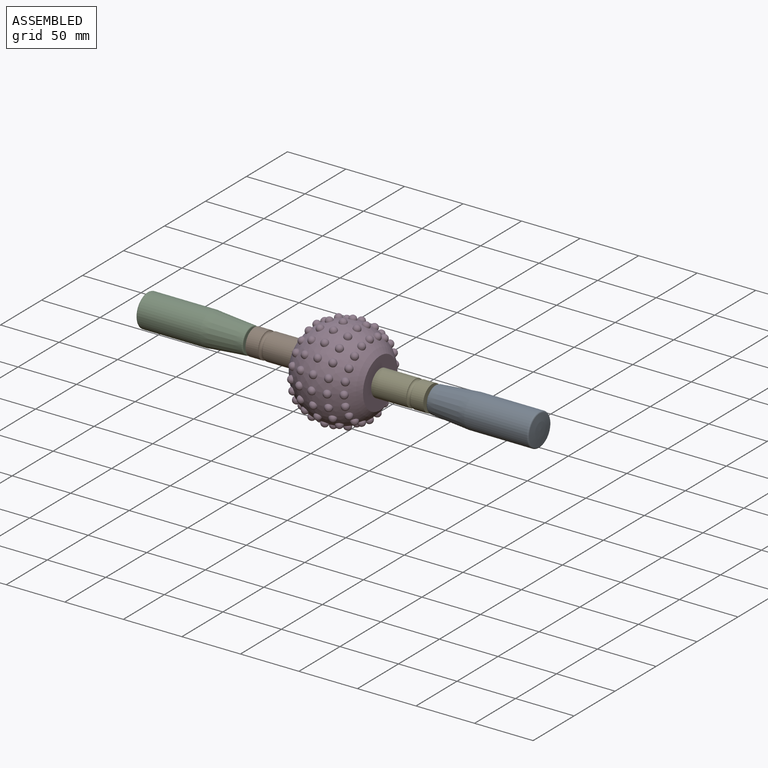
[diagram: assembled view]
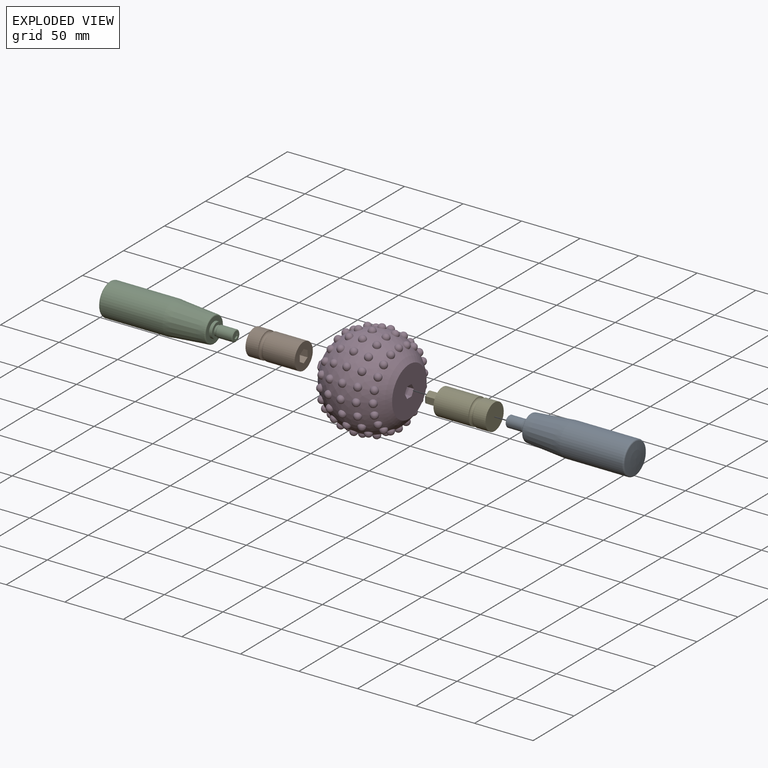
[diagram: exploded view]
GUIDED TOUR — MATED ASSEMBLY (Onshape document 25d12aa0dbe9cc3b2624c550, AutoMate assembly 25d12aa0dbe9cc3b2624c550_762bee8474b83015962dd6f4_c3f273e7779400f6ba3a4908_default)

This assembly has 5 components, labeled P0..P4 below (a component is one placed occurrence of a part; the same part can appear more than once), held together by 4 mates. A mate is a constraint between two components; its type names the relative motion it leaves free:
  FASTENED — locks the two components together rigidly (no relative motion),
  REVOLUTE — leaves rotation about the listed axis free (a hinge).
Axis/direction vectors are unit vectors and 'through' points are millimeter coordinates, both in the assembly's world frame.

MATES
  1. REVOLUTE "Revolute 2": P2 <-> P1, axis (1.000, 0.000, 0.000) through (-125.36, -10.83, 31.58) mm
  2. FASTENED "Fastened 2": P4 <-> P0, direction (1.000, 0.000, 0.000) through (24.54, -8.08, 26.82) mm
  3. FASTENED "Fastened 1": P4 <-> P3, direction (-1.000, 0.000, 0.000) through (-19.91, -8.08, 26.82) mm
  4. FASTENED "Fastened 3": P3 <-> P1, direction (1.000, 0.000, 0.000) through (-83.41, -10.83, 31.58) mm

ASSEMBLY ORDER
  1. P1 — the base component [order heuristic]
  2. P2 [order heuristic]
  3. P3 [order heuristic]
  4. P4 [order heuristic]
  5. P0 [order heuristic]
Order-tag legend:
  [order heuristic] — this assembly is geometrically interlocked (no collision-free removal order exists), so components are listed in mate-graph order; insertion feasibility is not verified.

Of the 5 components, 2 carry the full construction recipe — the FeatureScript program that regenerates the part's solid from scratch; the rest are supplied as boundary geometry only.
Each toured component is shown spotlighted twice — in the assembled view, then in the exploded view, where a leader line traces a displaced component back to its assembled socket (saturated green if recipe-attached, orange if geometry-only; every other component desaturated gray) — followed by its recipe or geometry summary and the mates that hold it.
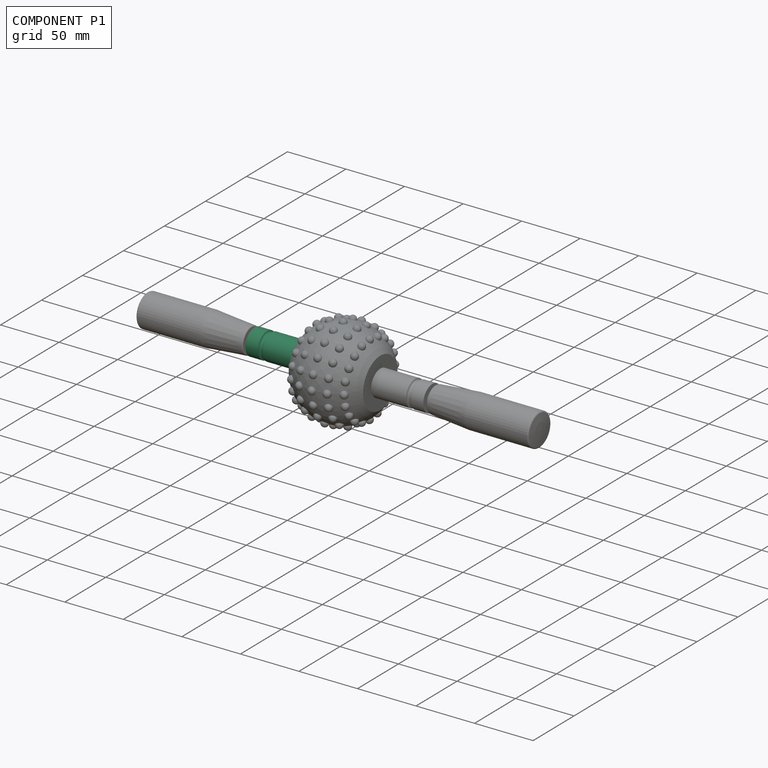
[diagram: component P1 — assembled]
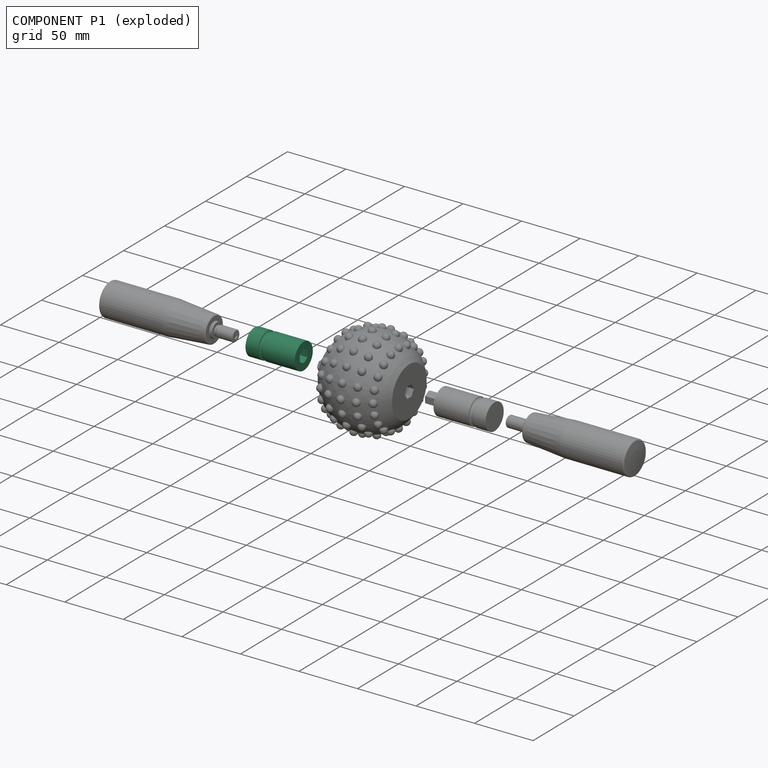
[diagram: component P1 — exploded]
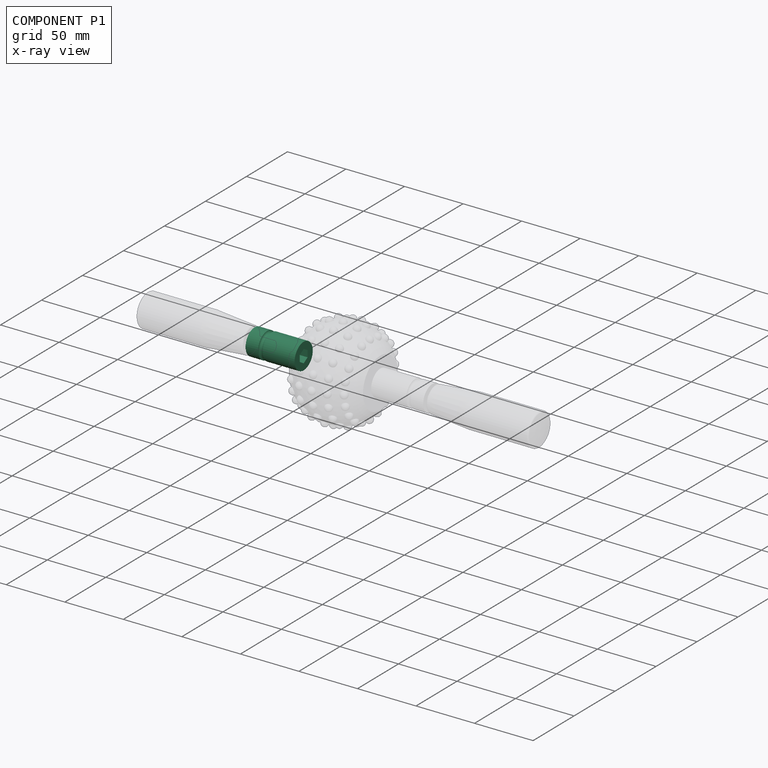
[diagram: component P1 — x-ray view]
COMPONENT P1 — recipe-attached (CADFS 00455741, mesh-verified: the recipe's output STEP matches this component's geometry to below the mesh-comparison resolution (tessellation chordal tolerance ~0.0786 mm)).
Held by: REVOLUTE mate "Revolute 2" to P2; FASTENED mate "Fastened 3" to P3.
Construction recipe (FeatureScript — the CAD program that rebuilds this solid; sketch coordinates are in the units given by the * unit suffixes, e.g. mm):

FeatureScript 1511;
import(path : "onshape/std/geometry.fs", version : "1511.0");
import(path : "onshape/std/common.fs", version : "1511.0");
const mm = millimeter;
const VERTEX = EntityType.VERTEX;
const EDGE = EntityType.EDGE;
const FACE = EntityType.FACE;
const BODY = EntityType.BODY;
function v(x, y){return vector(x, y);}
function OD(order){return orderDisambiguation(order);}
function OSD(set){return originalSetDisambiguation(set);}
function TD(topology){return topologyDisambiguation(topology);}
function TDD(query){return trueDependencyDisambiguation(query);}
function sQuery(a, b, c) {return sketchEntityQuery(a, b, c);}

annotation { "Feature Type Name" : "Feature", "Feature Type Description" : "" }
export const myFeature = defineFeature(function(context is Context, id is Id, definition is map)
    precondition{}
    {
        {
            var Q0;
            Q0=qCreatedBy(makeId("Right.planeOp"),FACE);
            var sketch = newSketch(context, id + "F0", { "sketchPlane" : qUnion([Q0])});
            skCircle(sketch, "E0", {"center": v(0, 0) * mm, "radius": 11.11 * mm});
            skPoint(sketch, "E1.0.midPoint", {"position": v(4.79, 0) * mm});
            skSolve(sketch);
        }
        {
            var Q0;
            Q0 = qSketchRegion(id + "F0", true);
            extrude(context, id + "F1", {"entities" : qUnion([Q0]), "oppositeDirection" : true, "depth" : 41.95 * mm});
        }
        {
            var Q0;
            Q0=qCreatedBy(makeId("Right.planeOp"),FACE);
            var sketch = newSketch(context, id + "F2", { "sketchPlane" : qUnion([Q0])});
            skCircle(sketch, "E2.cCircle", {"center": v(0, 0) * mm, "radius": 4.79 * mm, "construction": true});
            skLineSegment(sketch, "E2.0", {"start": v(4.79, 2.76) * mm, "end": v(4.79, -2.76) * mm});
            skLineSegment(sketch, "E2.1", {"start": v(4.79, -2.76) * mm, "end": v(0, -5.53) * mm});
            skLineSegment(sketch, "E2.2", {"start": v(0, -5.53) * mm, "end": v(-4.79, -2.76) * mm});
            skLineSegment(sketch, "E2.3", {"start": v(-4.79, -2.76) * mm, "end": v(-4.79, 2.76) * mm});
            skLineSegment(sketch, "E2.4", {"start": v(-4.79, 2.76) * mm, "end": v(0, 5.53) * mm});
            skLineSegment(sketch, "E2.5", {"start": v(0, 5.53) * mm, "end": v(4.79, 2.76) * mm});
            skPoint(sketch, "E2.0.midPoint", {"position": v(4.79, 0) * mm});
            skSolve(sketch);
        }
        {
            var Q0;
            Q0 = qSketchRegion(id + "F2", true);
            extrude(context, id + "F3", {"entities" : qUnion([Q0]), "operationType" : NewBodyOperationType.REMOVE, "oppositeDirection" : true, "depth" : 9.52 * mm});
        }
        {
            var Q0;
            Q0=makeQuery(id+"F1.opExtrude","CAP_FACE",FACE,{"disambiguationData":[OSD([sQuery(id+"F0.wireOp",EDGE,"E0")])],"isStart":false});
            var sketch = newSketch(context, id + "F4", { "sketchPlane" : qUnion([Q0])});
            skPoint(sketch, "E3", {"position": v(0, 0) * mm});
            skSolve(sketch);
        }
        {
            var Q0;
            Q0=sQuery(id+"F4.wireOp",VERTEX,"E3");
            var Q1;
            Q1=makeQuery(id+"F1.opExtrude","SWEPT_BODY",BODY,{"disambiguationData":[OSD([sQuery(id+"F0.wireOp",EDGE,"E0")])]});
            hole(context, id + "F5", {"style" : HoleStyle.SIMPLE, "endStyle" : HoleEndStyle.BLIND, "standardTappedOrClearance" : lookupTablePath({ "standard" : "ANSI", "engagement" : "75%", "pitch" : "16 tpi", "size" : "3/8", "type" : "Tapped" }), "standardBlindInLast" : lookupTablePath({ "standard" : "ANSI", "engagement" : "75%", "pitch" : "16 tpi", "size" : "3/8", "type" : "Tapped" }), "holeDiameter" : 7.94 * mm, "showTappedDepth" : true, "holeDepth" : 34.75 * mm, "isTappedThrough" : true, "tappedDepth" : 29.98 * mm, "tapClearance" : 3, "locations" : qUnion([Q0]), "scope" : qUnion([Q1]), "majorDiameter" : 9.53 * mm});
        }
        {
            var Q0;
            Q0=qCreatedBy(makeId("Front.planeOp"),FACE);
            var sketch = newSketch(context, id + "F6", { "sketchPlane" : qUnion([Q0])});
            skCircle(sketch, "E4", {"center": v(-29.25, 11.11) * mm, "radius": 1.9 * mm});
            skLineSegment(sketch, "E5", {"start": v(0, 0) * mm, "end": v(-64.29, 0) * mm, "construction": true});
            skSolve(sketch);
        }
        {
            var Q0;
            Q0=makeQuery(id+"F6.imprint","IMPRINT",FACE,{"disambiguationData":[TD([[makeQuery(id+"F6.imprint","IMPRINT",EDGE,{"derivedFrom":sQuery(id+"F6.wireOp",EDGE,"E4")}),1.0]])]});
            var Q1;
            Q1=sQuery(id+"F6.wireOp",EDGE,"E5");
            var Q2;
            Q2=sQuery(id+"F6.wireOp",EDGE,"E5");
            revolve(context, id + "F7", {"operationType" : NewBodyOperationType.REMOVE, "entities" : qUnion([Q0]), "surfaceEntities" : qUnion([Q1]), "axis" : qUnion([Q2]), "revolveType" : RevolveType.FULL, "oppositeDirection" : true});
        }
    });
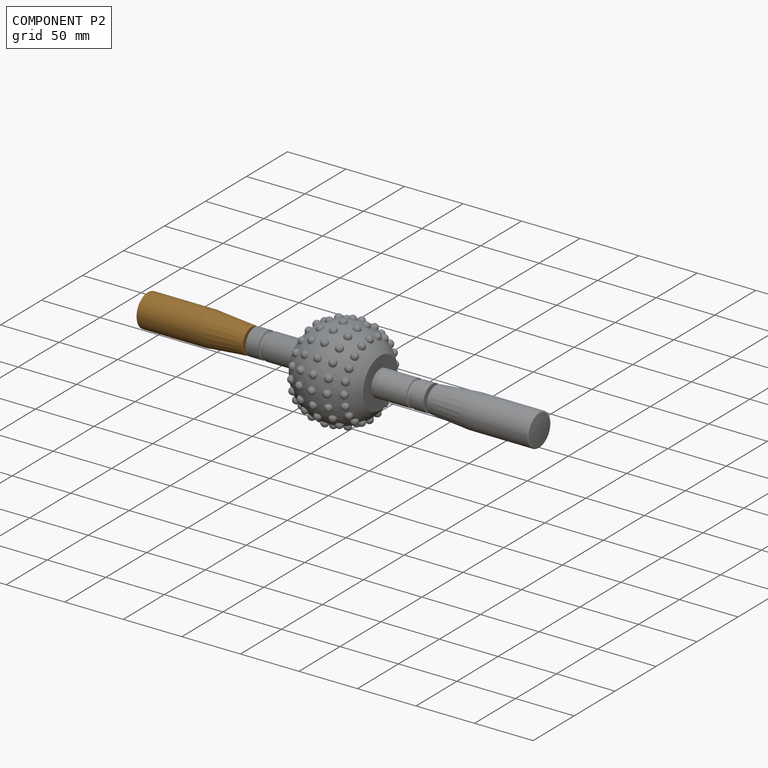
[diagram: component P2 — assembled]
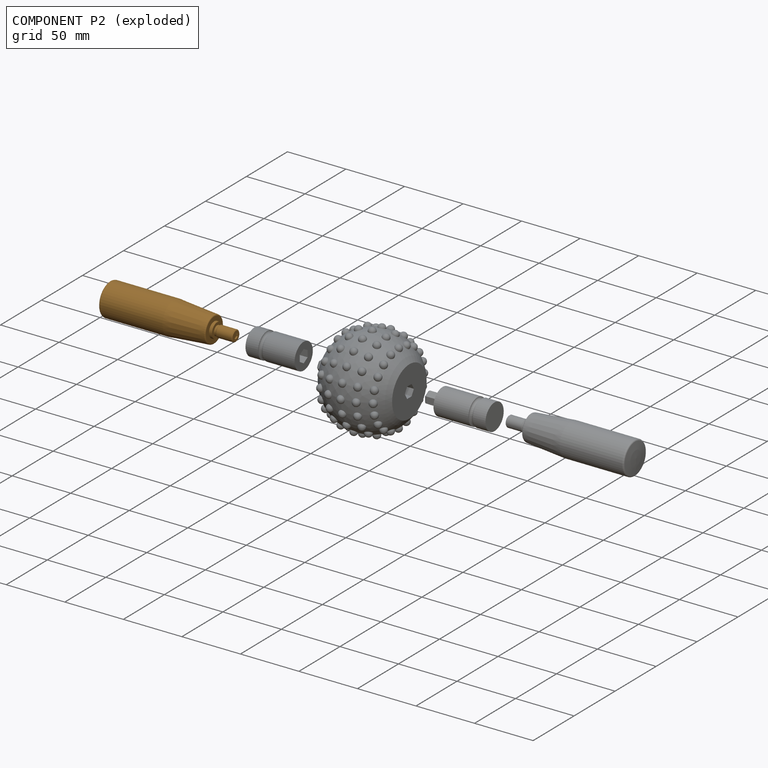
[diagram: component P2 — exploded]
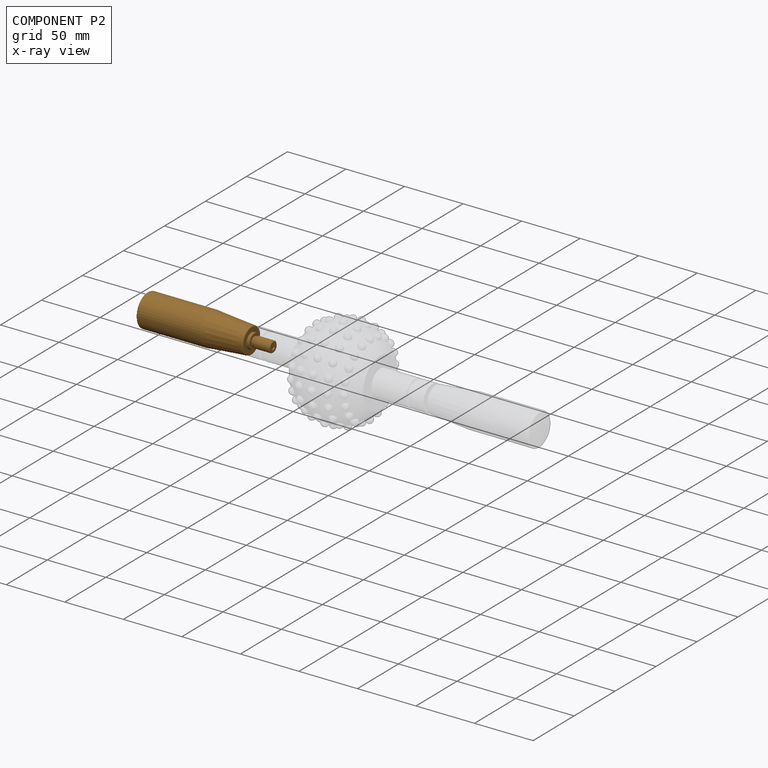
[diagram: component P2 — x-ray view]
COMPONENT P2 — geometry summary (no construction recipe available for this part):
  bounding box: 108.5 x 30.2 x 30.2 mm
  B-rep topology: 1 solid, 20 faces, 87 edges
  volume: 52107 mm^3 (53% of its bounding box)
  symmetry: revolution-symmetric about the z axis through its bounding-box center; mirror-symmetric across its x mid-plane, y mid-plane
Held by: REVOLUTE mate "Revolute 2" to P1.
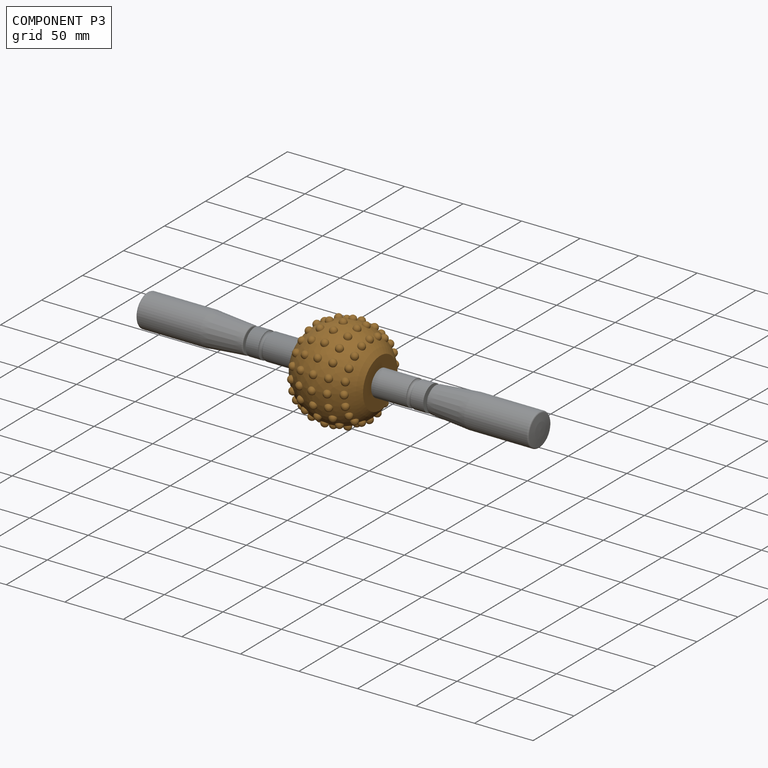
[diagram: component P3 — assembled]
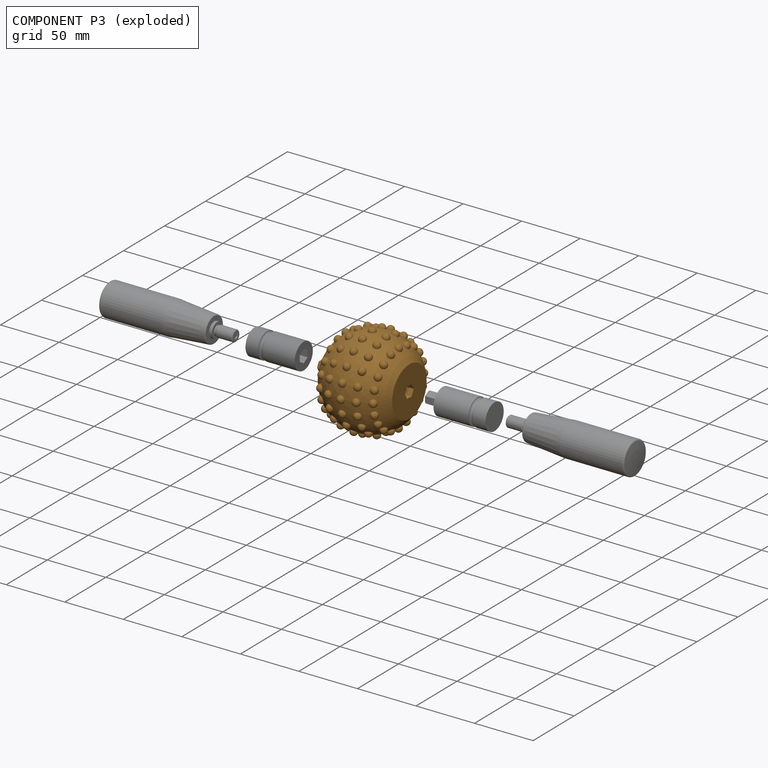
[diagram: component P3 — exploded]
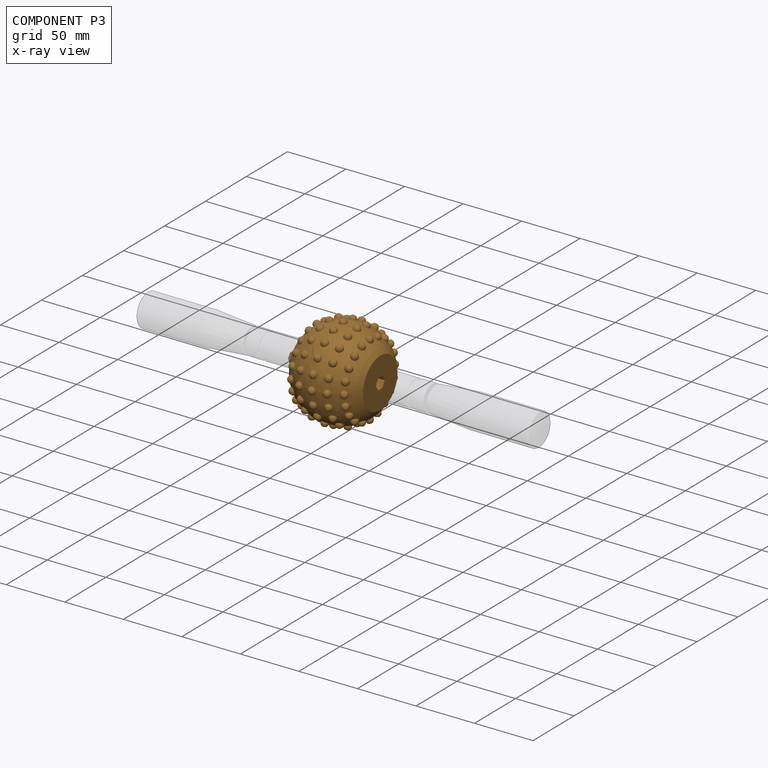
[diagram: component P3 — x-ray view]
COMPONENT P3 — geometry summary (no construction recipe available for this part):
  bounding box: 82.6 x 82.6 x 76.2 mm
  B-rep topology: 1 solid, 123 faces, 606 edges
  volume: 229427 mm^3 (44% of its bounding box)
  symmetry: 4-fold rotationally symmetric about the x axis; mirror-symmetric across its y mid-plane, z mid-plane
Held by: FASTENED mate "Fastened 1" to P4; FASTENED mate "Fastened 3" to P1.
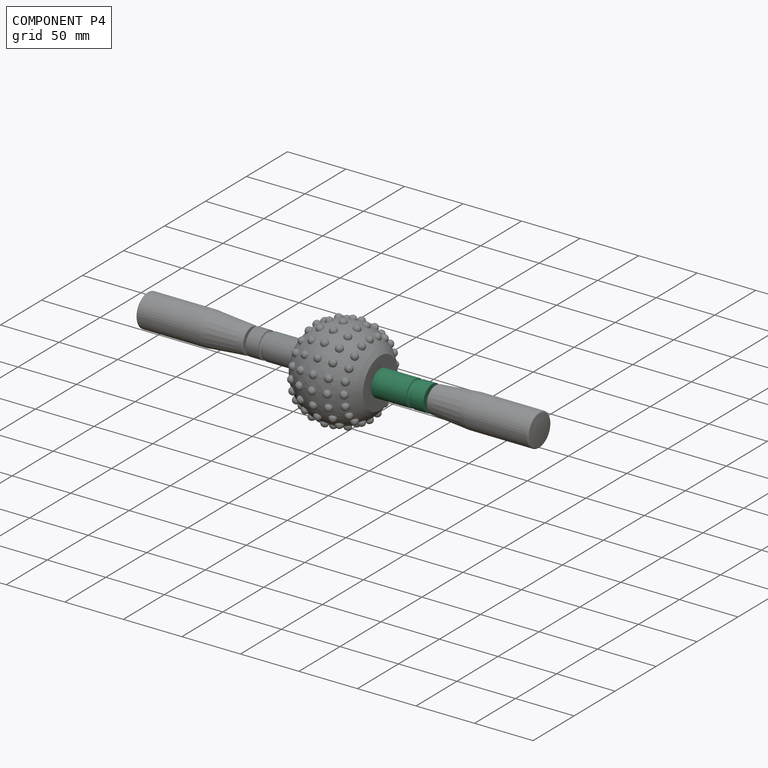
[diagram: component P4 — assembled]
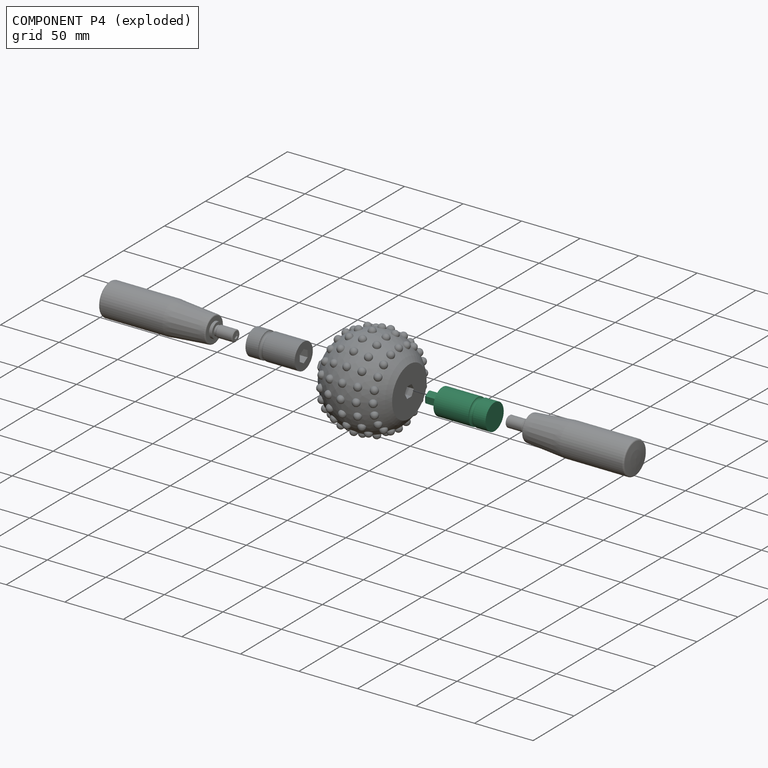
[diagram: component P4 — exploded]
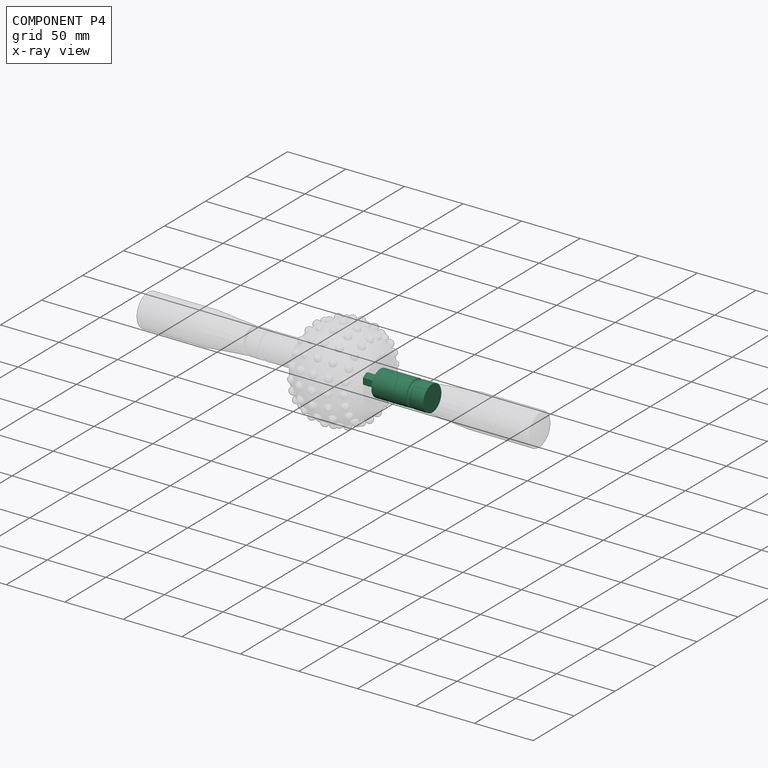
[diagram: component P4 — x-ray view]
COMPONENT P4 — recipe-attached (CADFS 00455743, mesh-verified: the recipe's output STEP matches this component's geometry to below the mesh-comparison resolution (tessellation chordal tolerance ~0.0978 mm)).
Held by: FASTENED mate "Fastened 2" to P0; FASTENED mate "Fastened 1" to P3.
Construction recipe (FeatureScript — the CAD program that rebuilds this solid; sketch coordinates are in the units given by the * unit suffixes, e.g. mm):

FeatureScript 1511;
import(path : "onshape/std/geometry.fs", version : "1511.0");
import(path : "onshape/std/common.fs", version : "1511.0");
const mm = millimeter;
const VERTEX = EntityType.VERTEX;
const EDGE = EntityType.EDGE;
const FACE = EntityType.FACE;
const BODY = EntityType.BODY;
function v(x, y){return vector(x, y);}
function OD(order){return orderDisambiguation(order);}
function OSD(set){return originalSetDisambiguation(set);}
function TD(topology){return topologyDisambiguation(topology);}
function TDD(query){return trueDependencyDisambiguation(query);}
function sQuery(a, b, c) {return sketchEntityQuery(a, b, c);}

annotation { "Feature Type Name" : "Feature", "Feature Type Description" : "" }
export const myFeature = defineFeature(function(context is Context, id is Id, definition is map)
    precondition{}
    {
        {
            var Q0;
            Q0=qCreatedBy(makeId("Right.planeOp"),FACE);
            var sketch = newSketch(context, id + "F0", { "sketchPlane" : qUnion([Q0])});
            skCircle(sketch, "E0", {"center": v(0, 0) * mm, "radius": 11.11 * mm});
            skSolve(sketch);
        }
        {
            var Q0;
            Q0 = qSketchRegion(id + "F0", true);
            extrude(context, id + "F1", {"entities" : qUnion([Q0]), "depth" : 44.45 * mm});
        }
        {
            var Q0;
            Q0=qCreatedBy(makeId("Right.planeOp"),FACE);
            var sketch = newSketch(context, id + "F2", { "sketchPlane" : qUnion([Q0])});
            skCircle(sketch, "E1.cCircle", {"center": v(0, 0) * mm, "radius": 4.76 * mm, "construction": true});
            skLineSegment(sketch, "E1.0", {"start": v(-4.76, -2.75) * mm, "end": v(-4.76, 2.75) * mm});
            skLineSegment(sketch, "E1.1", {"start": v(-4.76, 2.75) * mm, "end": v(0, 5.5) * mm});
            skLineSegment(sketch, "E1.2", {"start": v(0, 5.5) * mm, "end": v(4.76, 2.75) * mm});
            skLineSegment(sketch, "E1.3", {"start": v(4.76, 2.75) * mm, "end": v(4.76, -2.75) * mm});
            skLineSegment(sketch, "E1.4", {"start": v(4.76, -2.75) * mm, "end": v(0, -5.5) * mm});
            skLineSegment(sketch, "E1.5", {"start": v(0, -5.5) * mm, "end": v(-4.76, -2.75) * mm});
            skPoint(sketch, "E1.0.midPoint", {"position": v(-4.76, 0) * mm});
            skSolve(sketch);
        }
        {
            var Q0;
            Q0 = qSketchRegion(id + "F2", true);
            extrude(context, id + "F3", {"entities" : qUnion([Q0]), "operationType" : NewBodyOperationType.ADD, "oppositeDirection" : true, "depth" : 12.7 * mm, "offsetDistance" : 25.4 * mm});
        }
        {
            var Q0;
            Q0=makeQuery(id+"F3.opExtrude","CAP_EDGE",EDGE,{"disambiguationData":[OSD([sQuery(id+"F2.wireOp",EDGE,"E1.1")])],"isStart":false});
            var Q1;
            Q1=makeQuery(id+"F3.opExtrude","CAP_EDGE",EDGE,{"disambiguationData":[OSD([sQuery(id+"F2.wireOp",EDGE,"E1.2")])],"isStart":false});
            var Q2;
            Q2=makeQuery(id+"F3.opExtrude","CAP_EDGE",EDGE,{"disambiguationData":[OSD([sQuery(id+"F2.wireOp",EDGE,"E1.3")])],"isStart":false});
            var Q3;
            Q3=makeQuery(id+"F3.opExtrude","CAP_EDGE",EDGE,{"disambiguationData":[OSD([sQuery(id+"F2.wireOp",EDGE,"E1.4")])],"isStart":false});
            var Q4;
            Q4=makeQuery(id+"F3.opExtrude","CAP_EDGE",EDGE,{"disambiguationData":[OSD([sQuery(id+"F2.wireOp",EDGE,"E1.5")])],"isStart":false});
            var Q5;
            Q5=makeQuery(id+"F3.opExtrude","CAP_EDGE",EDGE,{"disambiguationData":[OSD([sQuery(id+"F2.wireOp",EDGE,"E1.0")])],"isStart":false});
            fillet(context, id + "F4", {"entities" : qUnion([Q0, Q1, Q2, Q3, Q4, Q5]), "radius" : 2.38 * mm, "tangentPropagation" : true, "allowEdgeOverflow" : false});
        }
        {
            var Q0;
            Q0=makeQuery(id+"F1.opExtrude","CAP_FACE",FACE,{"disambiguationData":[OSD([sQuery(id+"F0.wireOp",EDGE,"E0")])],"isStart":false});
            var sketch = newSketch(context, id + "F5", { "sketchPlane" : qUnion([Q0])});
            skPoint(sketch, "E2", {"position": v(0, 0) * mm});
            skSolve(sketch);
        }
        {
            var Q0;
            Q0=qCreatedBy(makeId("Front.planeOp"),FACE);
            var sketch = newSketch(context, id + "F6", { "sketchPlane" : qUnion([Q0])});
            skCircle(sketch, "E3", {"center": v(31.75, 11.11) * mm, "radius": 1.9 * mm});
            skLineSegment(sketch, "E4", {"start": v(0, 0) * mm, "end": v(79.53, 0) * mm, "construction": true});
            skSolve(sketch);
        }
        {
            var Q0;
            Q0=makeQuery(id+"F6.imprint","IMPRINT",FACE,{"disambiguationData":[TD([[makeQuery(id+"F6.imprint","IMPRINT",EDGE,{"derivedFrom":sQuery(id+"F6.wireOp",EDGE,"E3")}),1.0]])]});
            var Q1;
            Q1=sQuery(id+"F6.wireOp",EDGE,"E3");
            var Q2;
            Q2=sQuery(id+"F6.wireOp",EDGE,"E4");
            revolve(context, id + "F7", {"operationType" : NewBodyOperationType.REMOVE, "entities" : qUnion([Q0]), "surfaceEntities" : qUnion([Q1]), "axis" : qUnion([Q2]), "revolveType" : RevolveType.FULL, "oppositeDirection" : true});
        }
    });
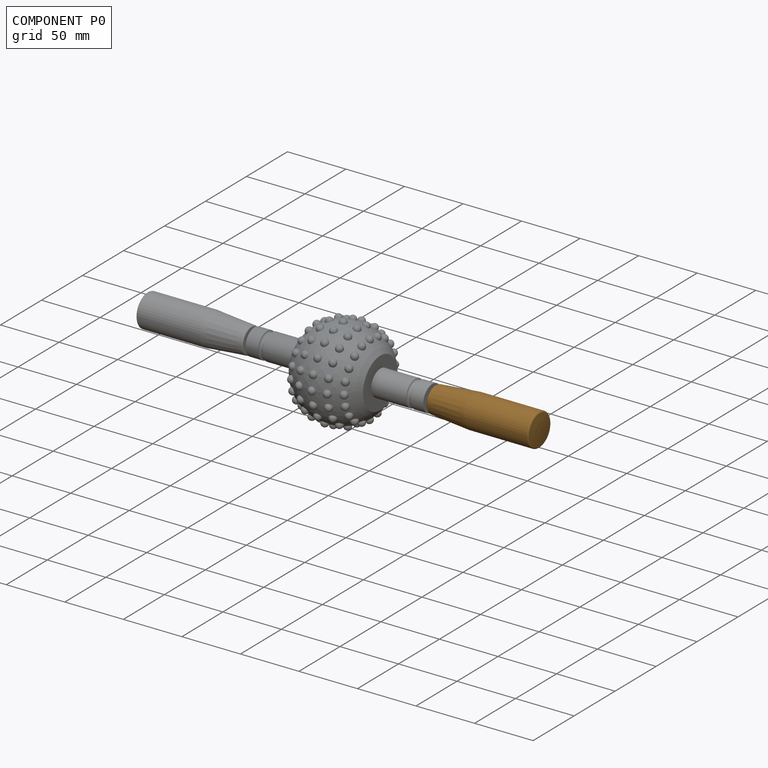
[diagram: component P0 — assembled]
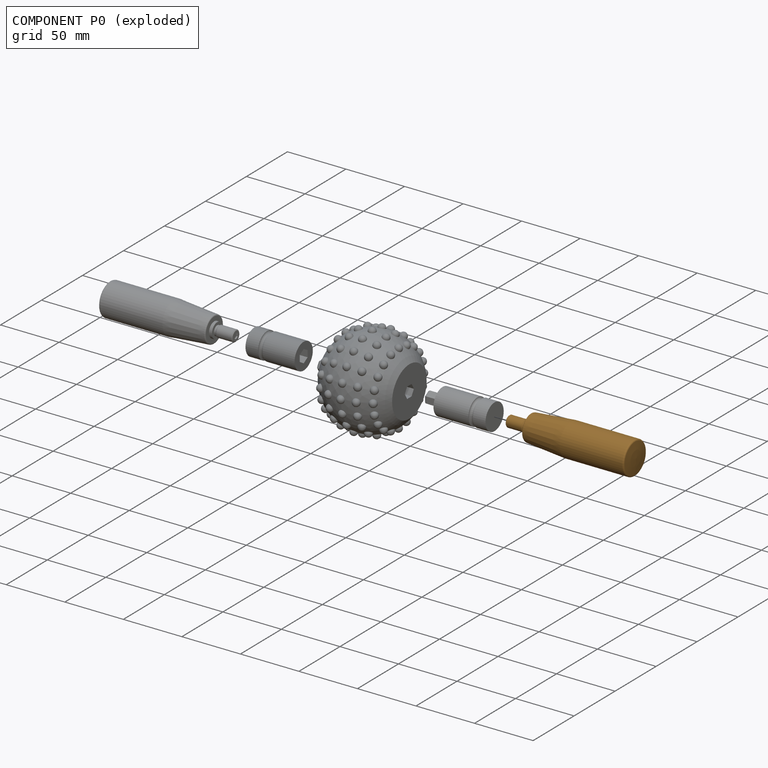
[diagram: component P0 — exploded]
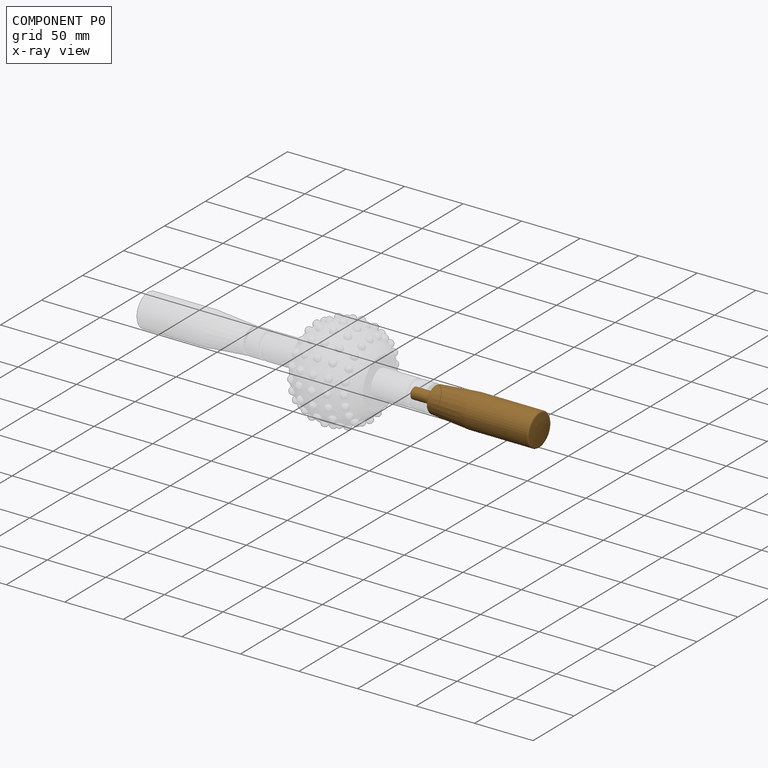
[diagram: component P0 — x-ray view]
COMPONENT P0 — geometry summary (no construction recipe available for this part):
  bounding box: 108.5 x 30.2 x 30.2 mm
  B-rep topology: 1 solid, 20 faces, 87 edges
  volume: 52107 mm^3 (53% of its bounding box)
  symmetry: revolution-symmetric about the z axis through its bounding-box center; mirror-symmetric across its x mid-plane, y mid-plane
Held by: FASTENED mate "Fastened 2" to P4.
PROVENANCE & LICENSES
Assembly (occurrences, transforms, mates, per-part STEP geometry): AutoMate dataset, Zenodo record 7776208, CC0.
Construction recipes: CADFS (HuggingFace VladPyatov/CADFS, CC-BY-4.0, layered over the ABC dataset), FeatureScript reconstruction programs keyed by ABC model id.
Join: ABC meta listings map ABC model id -> Onshape documentId; within a shared document, parts are matched by geometric signature (bounding-box dims + volume at 0.1% relative tolerance, exact B-rep face/solid counts).
Verification: 2 of this assembly's 5 components carry a recipe attachment, and every attachment is mesh-verified: the CADFS STEP and the AutoMate member STEP were compared as meshes in their shared local frame (symmetric sampled-point-to-mesh distance); worst across the 2 attachments: below the mesh-comparison resolution (tessellation chordal tolerance ~0.0978 mm) on a 65 mm part.
Renders: orthographic iso camera (az 35 / el 25); the floor grid conveys scale (grid pitch printed in each image; no ruler). In the exploded view each component is displaced by its stored offset vector: the offsets alone carry the explosion direction (mate normal/axis signs are not orientation cues and do not encode it), and separation distances are assigned per mate-chain, not proportionally to assembly-order depth.
